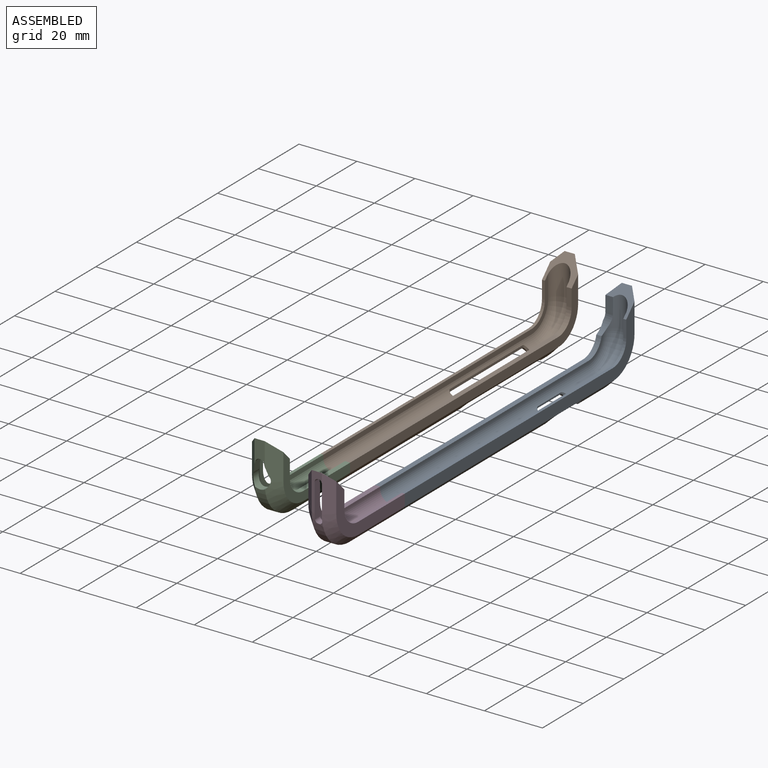
[diagram: assembled view]
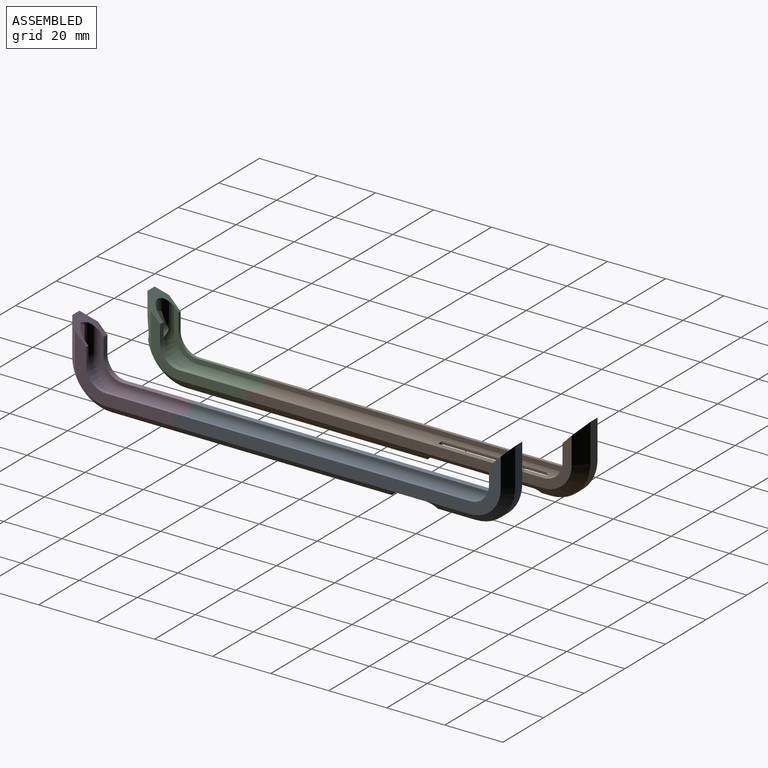
[diagram: assembled view, second angle]
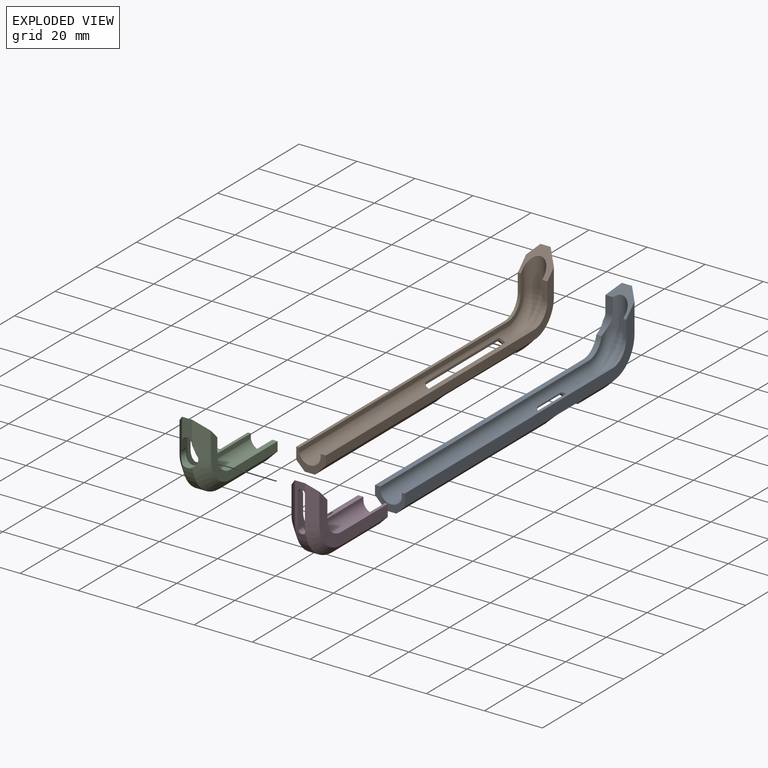
[diagram: exploded view]
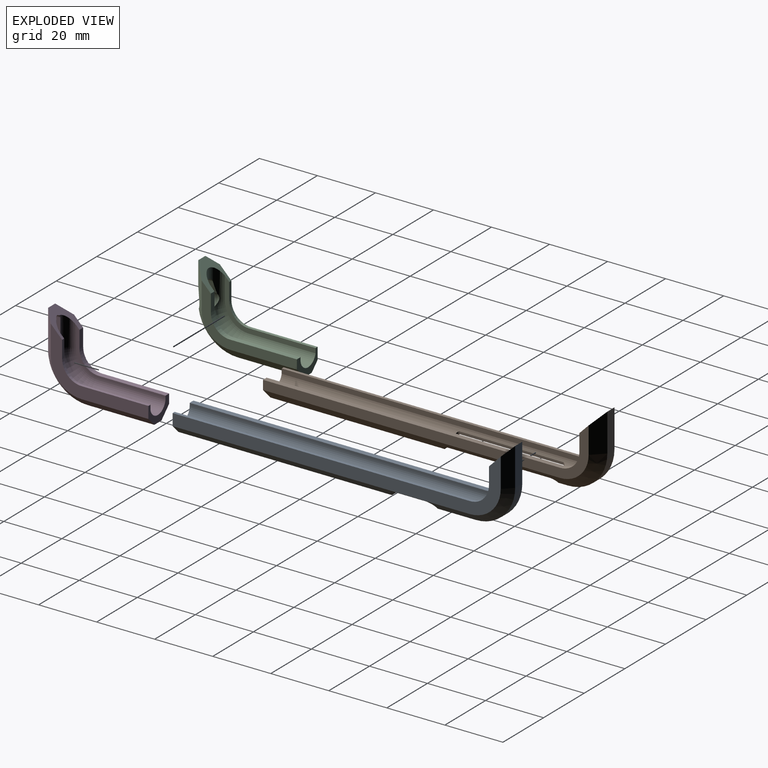
[diagram: exploded view, second angle]
ASSEMBLY  parts=4 mates=2
PART A: 50 faces, bbox 27.2x116.3x10.5 mm
  f0: plane 113.09x20.74mm, normal (0,0,1), area 503.9mm2, adj f5,f9,f11,f15,f23,f47,f48,f49
  f1: plane 110.69x15.9mm, normal (0,0,-1), area 201mm2, adj f2,f9,f10,f15,f16,f47,f48,f49
  f2: cylinder r=3.75mm len=102.41mm, axis (0,-1,0), area 1039.9mm2, adj f1,f4,f16,f26,f27,f28,f29,f30
  f3: plane 112.21x11.67mm, normal (0,0,-1), area 365.6mm2, adj f7,f8,f13,f21,f25,f44,f49
  f4: plane 109.81x6.53mm, normal (0,0,1), area 92.6mm2, adj f2,f8,f16,f21,f44,f49
  f5: plane 102.43x2.94mm, normal (0.71,0,0.71), area 366.3mm2, adj f0,f6,f17,f18,f20,f22,f23,f35
  f6: plane 73.64x3.5mm, normal (1,0,0), area 257.5mm2, adj f5,f7,f36,f37,f38,f49
  f7: plane 102.47x3.86mm, normal (0.71,0,-0.71), area 504.3mm2, adj f3,f6,f22,f25,f38,f39,f41,f49
  f8: plane 102.41x1.8mm, normal (-1,0,0), area 184.3mm2, adj f3,f4,f44,f49
  f9: plane 102.41x1.02mm, normal (-1,0,0), area 104.1mm2, adj f0,f1,f47,f49
  f10: cylinder r=3.75mm len=10.6mm, axis (1,0,0), area 78.9mm2, adj f1,f14,f16,f21,f34,f48
  f11: plane 13.04x2.92mm, normal (0,0.71,0.71), area 47.8mm2, adj f0,f12,f23,f48
  f12: plane 13.04x3.5mm, normal (0,1,0), area 45.6mm2, adj f11,f13,f24,f48
  f13: plane 13.35x4.11mm, normal (0,0.71,-0.71), area 55.2mm2, adj f3,f12,f14,f21,f25,f34,f48
  f14: plane 2.61x1.67mm, normal (0,-1,0), area 4.3mm2, adj f10,f13,f34,f48
  f15: plane 5.93x1.02mm, normal (0,-1,0), area 6mm2, adj f0,f1,f47,f48
  f16: torus R=7.45mm, axis (0,0,-1), area 171.2mm2, adj f1,f2,f4,f10,f21
  f17: bspline ~3.54x3.33mm, area 5.6mm2, adj f5,f18,f19,f32,f35,f45,f46
  f18: plane 11x0.48mm, normal (0.92,0,-0.38), area 5.7mm2, adj f5,f17,f20,f46
  f19: plane 11x0.66mm, normal (0.92,0,-0.38), area 7.8mm2, adj f17,f20,f33,f45
  f20: bspline ~3.55x3.35mm, area 5.6mm2, adj f5,f18,f19,f26,f40,f45,f46
  f21: cylinder r=5.99mm len=5.93mm, axis (0,0,1), area 16.6mm2, adj f3,f4,f10,f13,f16,f34,f44
  f22: plane 13.22x3.5mm, normal (1,0,0), area 46mm2, adj f5,f7,f24,f41,f42,f43
  f23: cone r=13.6mm half-angle=45deg, axis (0,0,-1), area 78.8mm2, adj f0,f5,f11,f24
  f24: cylinder r=13.6mm len=13.6mm, axis (0,0,-1), area 74.8mm2, adj f12,f22,f23,f25
  f25: cone r=9.8mm half-angle=45deg, axis (0,0,1), area 98.8mm2, adj f3,f7,f13,f24
  f26: cylinder r=1.5mm len=2.93mm, axis (-1,0,0), area 2mm2, adj f2,f20,f27,f33
  f27: plane 2.5x1.85mm, normal (0,-1,0), area 4mm2, adj f2,f26,f28,f40,f42
  f28: cylinder r=1.5mm len=2.49mm, axis (-1,0,0), area 2.2mm2, adj f2,f27,f29,f41,f43
  f29: plane 11x0.52mm, normal (0,0,1), area 5.7mm2, adj f2,f28,f30,f39
  f30: cylinder r=1.5mm len=2.49mm, axis (-1,0,0), area 2.2mm2, adj f2,f29,f31,f37,f38
  f31: plane 2.5x1.85mm, normal (0,1,0), area 4mm2, adj f2,f30,f32,f35,f36
  f32: cylinder r=1.5mm len=2.93mm, axis (-1,0,0), area 2mm2, adj f2,f17,f31,f33
  f33: plane 11x0.56mm, normal (0,0,-1), area 6.2mm2, adj f2,f19,f26,f32
  f34: plane 3.46x2.64mm, normal (-0.01,-1,0), area 9mm2, adj f10,f13,f14,f21
  f35: plane 0.97x0.86mm, normal (0.5,0.71,0.5), area 0.4mm2, adj f5,f17,f31,f36
  f36: plane 2.75x0.86mm, normal (0.71,0.71,0), area 3.1mm2, adj f6,f31,f35,f37
  f37: cone r=1.5mm half-angle=45deg, axis (1,0,0), area 0.5mm2, adj f6,f30,f36,f38
  f38: bspline ~3.05x3.03mm, area 5.4mm2, adj f6,f7,f30,f37,f39
  f39: plane 11x1.47mm, normal (0.92,0,0.38), area 17.6mm2, adj f7,f29,f38,f41
  f40: plane 0.97x0.86mm, normal (0.5,-0.71,0.5), area 0.4mm2, adj f5,f20,f27,f42
  f41: bspline ~3.05x3.03mm, area 5.4mm2, adj f7,f22,f28,f39,f43
  f42: plane 2.75x0.86mm, normal (0.71,-0.71,0), area 3.1mm2, adj f22,f27,f40,f43
  f43: cone r=1.5mm half-angle=45deg, axis (1,0,0), area 0.5mm2, adj f22,f28,f41,f42
  f44: cylinder r=6.63mm len=6.48mm, axis (0,0,-1), area 16.2mm2, adj f3,f4,f8,f21
  f45: plane 12.18x0.19mm, normal (0,0,-1), area 1.6mm2, adj f17,f19,f20,f46
  f46: plane 12.25x0.46mm, normal (1,0,0), area 3.9mm2, adj f17,f18,f20,f45
  f47: cylinder r=6.61mm len=6.61mm, axis (0,0,1), area 10.6mm2, adj f0,f1,f9,f15
  f48: plane 9.74x7.11mm, normal (-0.7,-0.71,0), area 34.4mm2, adj f0,f1,f10,f11,f12,f13,f14,f15
  f49: plane 10.22x6.99mm, normal (0,-1,0), area 31.7mm2, adj f0,f1,f2,f3,f4,f5,f6,f7
PART B: 48 faces, bbox 33.5x122.8x17 mm
  f0: plane 13.04x3.5mm, normal (0,1,0), area 45.6mm2, adj f3,f7,f11,f12
  f1: plane 36.59x0.37mm, normal (-1,0,0), area 9.4mm2, adj f2,f16,f17,f18
  f2: plane 36.52x0.15mm, normal (0,0,-1), area 3.9mm2, adj f1,f6,f16,f18
  f3: cylinder r=13.6mm len=13.6mm, axis (0,0,-1), area 74.8mm2, adj f0,f20,f21,f22
  f4: cone r=1.78mm half-angle=45deg, axis (-1,0,0), area 0.4mm2, adj f5,f22,f23,f33
  f5: plane 2.88x0.78mm, normal (-0.71,-0.71,0), area 3mm2, adj f4,f19,f22,f34
  f6: plane 35.65x0.53mm, normal (-0.92,0,-0.38), area 20.6mm2, adj f2,f16,f18,f36
  f7: plane 13.04x2.92mm, normal (0,0.71,0.71), area 47.8mm2, adj f0,f11,f20,f46
  f8: plane 5.93x1.02mm, normal (0,-1,0), area 6mm2, adj f11,f27,f45,f46
  f9: cylinder r=3.75mm len=7.63mm, axis (1,0,0), area 78.9mm2, adj f11,f28,f44,f45
  f10: plane 5.95x1.8mm, normal (0,-1,0), area 10.7mm2, adj f11,f26,f42,f44
  f11: plane 16.97x13.85mm, normal (0.7,-0.71,0), area 45.2mm2, adj f0,f7,f8,f9,f10,f12,f42,f44
  f12: plane 13.04x3.8mm, normal (0,0.71,-0.71), area 59.7mm2, adj f0,f11,f21,f42
  f13: cone r=1.78mm half-angle=45deg, axis (-1,0,0), area 0.4mm2, adj f14,f25,f31,f40
  f14: plane 2.88x0.78mm, normal (-0.71,0.71,0), area 3mm2, adj f13,f15,f30,f40
  f15: plane 1.47x1.25mm, normal (-0.5,0.71,0.5), area 1.3mm2, adj f14,f16,f30,f38
  f16: bspline ~2.35x2.35mm, area 3.7mm2, adj f1,f2,f6,f15,f17,f29,f38
  f17: plane 35.65x0.54mm, normal (-0.92,0,-0.38), area 20.7mm2, adj f1,f16,f18,f38
  f18: bspline ~2.35x2.35mm, area 3.7mm2, adj f1,f2,f6,f17,f19,f35,f38
  f19: plane 1.47x1.25mm, normal (-0.5,-0.71,0.5), area 1.3mm2, adj f5,f18,f34,f38
  f20: cone r=13.6mm half-angle=45deg, axis (0,0,-1), area 78.8mm2, adj f3,f7,f38,f46
  f21: cone r=9.8mm half-angle=45deg, axis (0,0,1), area 98.8mm2, adj f3,f12,f39,f42
  f22: plane 3.5x3.39mm, normal (-1,0,0), area 11.6mm2, adj f3,f4,f5,f23,f38,f39
  f23: bspline ~2.32x2.31mm, area 3.6mm2, adj f4,f22,f24,f33,f39
  f24: plane 35.65x1.33mm, normal (-0.92,0,0.38), area 51.2mm2, adj f23,f25,f32,f39
  f25: bspline ~2.41x2.39mm, area 3.6mm2, adj f13,f24,f31,f39,f40
  f26: cylinder r=6.62mm len=6.63mm, axis (0,0,-1), area 18.7mm2, adj f10,f41,f42,f44
  f27: cylinder r=6.61mm len=6.61mm, axis (0,0,1), area 10.6mm2, adj f8,f37,f45,f46
  f28: torus R=7.45mm, axis (0,0,-1), area 171.8mm2, adj f9,f43,f44,f45
  f29: cylinder r=1mm len=2.6mm, axis (1,0,0), area 1.9mm2, adj f16,f30,f36,f43
  f30: plane 3.25x2.28mm, normal (0,1,0), area 5.5mm2, adj f14,f15,f29,f31,f43
  f31: cylinder r=1mm len=2.28mm, axis (1,0,0), area 1.9mm2, adj f13,f25,f30,f32,f43
  f32: plane 35.65x0.81mm, normal (0,0,1), area 28.8mm2, adj f24,f31,f33,f43
  f33: cylinder r=1mm len=2.28mm, axis (1,0,0), area 1.9mm2, adj f4,f23,f32,f34,f43
  f34: plane 3.25x2.28mm, normal (0,-1,0), area 5.5mm2, adj f5,f19,f33,f35,f43
  f35: cylinder r=1mm len=2.6mm, axis (1,0,0), area 1.9mm2, adj f18,f34,f36,f43
  f36: plane 35.65x0.82mm, normal (0,0,-1), area 29.4mm2, adj f6,f29,f35,f43
  f37: plane 102.41x1.02mm, normal (1,0,0), area 104.1mm2, adj f27,f45,f46,f47
  f38: plane 102.46x2.97mm, normal (-0.71,0,0.71), area 275.6mm2, adj f15,f16,f17,f18,f19,f20,f22,f40
  f39: plane 102.46x3.85mm, normal (-0.71,0,-0.71), area 457.9mm2, adj f21,f22,f23,f24,f25,f40,f42,f47
  f40: plane 59.97x3.5mm, normal (-1,0,0), area 209.7mm2, adj f13,f14,f25,f38,f39,f47
  f41: plane 102.41x1.8mm, normal (1,0,0), area 184.3mm2, adj f26,f42,f44,f47
  f42: plane 112.21x18.98mm, normal (0,0,-1), area 390.1mm2, adj f10,f11,f12,f21,f26,f39,f41,f47
  f43: cylinder r=3.75mm len=102.41mm, axis (0,1,0), area 899.8mm2, adj f28,f29,f30,f31,f32,f33,f34,f35
  f44: plane 109.86x14.24mm, normal (0,0,1), area 98.9mm2, adj f9,f10,f11,f26,f28,f41,f43,f47
  f45: plane 110.69x15.9mm, normal (0,0,-1), area 201mm2, adj f8,f9,f11,f27,f28,f37,f43,f47
  f46: plane 113.09x20.74mm, normal (0,0,1), area 503.9mm2, adj f7,f8,f11,f20,f27,f37,f38,f47
  f47: plane 10.22x6.99mm, normal (0,-1,0), area 31.7mm2, adj f37,f38,f39,f40,f41,f42,f43,f44
PART C: 28 faces, bbox 26.6x36.6x10.2 mm
  f0: plane 6.04x1.02mm, normal (0,1,0), area 6.1mm2, adj f1,f9,f25,f26
  f1: plane 31.29x15.9mm, normal (0,0,-1), area 68mm2, adj f0,f8,f22,f23,f24,f25,f26,f27
  f2: plane 13.04x3.8mm, normal (0,-0.71,-0.71), area 54.7mm2, adj f3,f7,f18,f19,f20,f26
  f3: plane 7.99x3.5mm, normal (0,-1,0), area 22.6mm2, adj f2,f4,f16,f17,f20,f26
  f4: plane 13.04x2.92mm, normal (0,-0.71,0.71), area 42.8mm2, adj f3,f9,f15,f17,f19,f26
  f5: plane 5.95x1.8mm, normal (0,1,0), area 10.7mm2, adj f6,f7,f21,f26
  f6: plane 30.46x14.24mm, normal (0,0,1), area 33.4mm2, adj f5,f8,f14,f21,f23,f24,f26,f27
  f7: plane 32.81x18.98mm, normal (0,0,-1), area 138mm2, adj f2,f5,f13,f14,f18,f21,f26,f27
  f8: cylinder r=3.75mm len=10.61mm, axis (-1,0,0), area 69.8mm2, adj f1,f6,f16,f17,f19,f20,f24,f26
  f9: plane 33.69x20.74mm, normal (0,0,1), area 180.2mm2, adj f0,f4,f12,f15,f22,f25,f26,f27
  f10: plane 23.01x3.5mm, normal (-1,0,0), area 80.5mm2, adj f11,f12,f13,f27
  f11: cylinder r=13.6mm len=13.45mm, axis (0,0,-1), area 66.4mm2, adj f10,f15,f18,f19
  f12: plane 23.01x2.92mm, normal (-0.71,0,0.71), area 95.2mm2, adj f9,f10,f15,f27
  f13: plane 23.01x3.8mm, normal (-0.71,0,-0.71), area 123.7mm2, adj f7,f10,f18,f27
  f14: plane 23.01x1.8mm, normal (1,0,0), area 41.4mm2, adj f6,f7,f21,f27
  f15: cone r=13.6mm half-angle=45deg, axis (0,0,-1), area 76.6mm2, adj f4,f9,f11,f12,f19
  f16: cylinder r=1.58mm len=3.06mm, axis (0,1,0), area 10.5mm2, adj f3,f8,f17,f20
  f17: plane 3.93x3.44mm, normal (-0.26,0,-0.97), area 11mm2, adj f3,f4,f8,f16,f19
  f18: cone r=9.8mm half-angle=45deg, axis (0,0,1), area 96.5mm2, adj f2,f7,f11,f13,f19
  f19: cylinder r=3mm len=5.99mm, axis (0,1,0), area 33.1mm2, adj f2,f4,f8,f11,f15,f17,f18,f20
  f20: plane 3.93x3.44mm, normal (-0.26,0,0.97), area 11mm2, adj f2,f3,f8,f16,f19
  f21: cylinder r=6.62mm len=6.63mm, axis (0,0,-1), area 18.7mm2, adj f5,f6,f7,f14
  f22: plane 23.01x1.02mm, normal (1,0,0), area 23.4mm2, adj f1,f9,f25,f27
  f23: cylinder r=3.75mm len=23.01mm, axis (0,1,0), area 252mm2, adj f1,f6,f24,f27
  f24: torus R=7.45mm, axis (0,0,-1), area 159.1mm2, adj f1,f6,f8,f19,f23
  f25: cylinder r=6.71mm len=6.71mm, axis (0,0,1), area 10.6mm2, adj f0,f1,f9,f22
  f26: plane 10.22x7.1mm, normal (0.7,0.71,0), area 45mm2, adj f0,f1,f2,f3,f4,f5,f6,f7
  f27: plane 10.22x6.99mm, normal (0,1,0), area 31.7mm2, adj f1,f6,f7,f9,f10,f12,f13,f14
PART D: 29 faces, bbox 26.6x36.6x10.2 mm
  f0: cylinder r=1.25mm len=2.83mm, axis (0,1,0), area 10mm2, adj f1,f2,f3,f5,f7,f10,f11
  f1: plane 11.6x3.04mm, normal (0,0,-1), area 32.9mm2, adj f0,f4,f5,f7,f9,f13
  f2: plane 13.04x3.5mm, normal (0,-1,0), area 19.3mm2, adj f0,f3,f5,f8,f11,f14
  f3: plane 11.6x2.68mm, normal (0,0,1), area 28.7mm2, adj f0,f2,f4,f9,f10,f14
  f4: cylinder r=1.25mm len=2.94mm, axis (0,1,0), area 10.3mm2, adj f1,f3,f9,f14
  f5: plane 13.05x2.93mm, normal (0,-0.71,0.71), area 47.8mm2, adj f0,f1,f2,f11,f13,f27
  f6: plane 6.04x1.02mm, normal (0,1,0), area 6.1mm2, adj f11,f17,f26,f27
  f7: cylinder r=3.75mm len=10.27mm, axis (-1,0,0), area 29.3mm2, adj f0,f1,f9,f11,f26
  f8: plane 13.04x3.8mm, normal (0,-0.71,-0.71), area 59.7mm2, adj f2,f11,f15,f23
  f9: torus R=7.45mm, axis (0,0,-1), area 163.7mm2, adj f1,f3,f4,f7,f10,f19,f24,f26
  f10: cylinder r=3.75mm len=10.6mm, axis (-1,0,0), area 46.5mm2, adj f0,f3,f9,f11,f19
  f11: plane 10.22x7.1mm, normal (-0.7,0.71,0), area 44.6mm2, adj f0,f2,f5,f6,f7,f8,f10,f12
  f12: plane 5.95x1.8mm, normal (0,1,0), area 10.7mm2, adj f11,f16,f19,f23
  f13: cone r=13.6mm half-angle=45deg, axis (0,0,-1), area 78.8mm2, adj f1,f5,f14,f22,f27
  f14: cylinder r=13.6mm len=13.6mm, axis (0,0,-1), area 67mm2, adj f2,f3,f4,f13,f15,f21
  f15: cone r=9.8mm half-angle=45deg, axis (0,0,1), area 98.8mm2, adj f8,f14,f20,f23
  f16: cylinder r=6.62mm len=6.63mm, axis (0,0,-1), area 18.7mm2, adj f12,f18,f19,f23
  f17: cylinder r=6.71mm len=6.71mm, axis (0,0,1), area 10.6mm2, adj f6,f25,f26,f27
  f18: plane 23.01x1.8mm, normal (-1,0,0), area 41.4mm2, adj f16,f19,f23,f28
  f19: plane 30.46x14.24mm, normal (0,0,1), area 33.4mm2, adj f9,f10,f11,f12,f16,f18,f24,f28
  f20: plane 23.01x3.8mm, normal (0.71,0,-0.71), area 123.7mm2, adj f15,f21,f23,f28
  f21: plane 23.01x3.5mm, normal (1,0,0), area 80.5mm2, adj f14,f20,f22,f28
  f22: plane 23.01x2.92mm, normal (0.71,0,0.71), area 95.2mm2, adj f13,f21,f27,f28
  f23: plane 32.81x18.98mm, normal (0,0,-1), area 138mm2, adj f8,f11,f12,f15,f16,f18,f20,f28
  f24: cylinder r=3.75mm len=23.01mm, axis (0,-1,0), area 252mm2, adj f9,f19,f26,f28
  f25: plane 23.01x1.02mm, normal (-1,0,0), area 23.4mm2, adj f17,f26,f27,f28
  f26: plane 31.29x15.9mm, normal (0,0,-1), area 68mm2, adj f6,f7,f9,f11,f17,f24,f25,f28
  f27: plane 33.69x20.74mm, normal (0,0,1), area 180.2mm2, adj f5,f6,f11,f13,f17,f22,f25,f28
  f28: plane 10.22x6.99mm, normal (0,1,0), area 31.7mm2, adj f18,f19,f20,f21,f22,f23,f24,f25
PLACE A rot(axis=(0,1,0),90deg) t=(25.4,-17.83,41.4)mm
PLACE B rot(axis=(0,-1,0),90deg) t=(0,-9.68,41.4)mm
PLACE C rot(axis=(0,-1,0),90deg) t=(0,3.78,41.4)mm
PLACE D rot(axis=(0,1,0),90deg) t=(25.4,-4.37,41.4)mm
MATE fastened D.f28 <-> A.f49  axis (0,1,0) through (24.91,-50.8,3)mm
MATE fastened C.f27 <-> B.f47  axis (0,1,0) through (0.49,-42.65,3)mm
